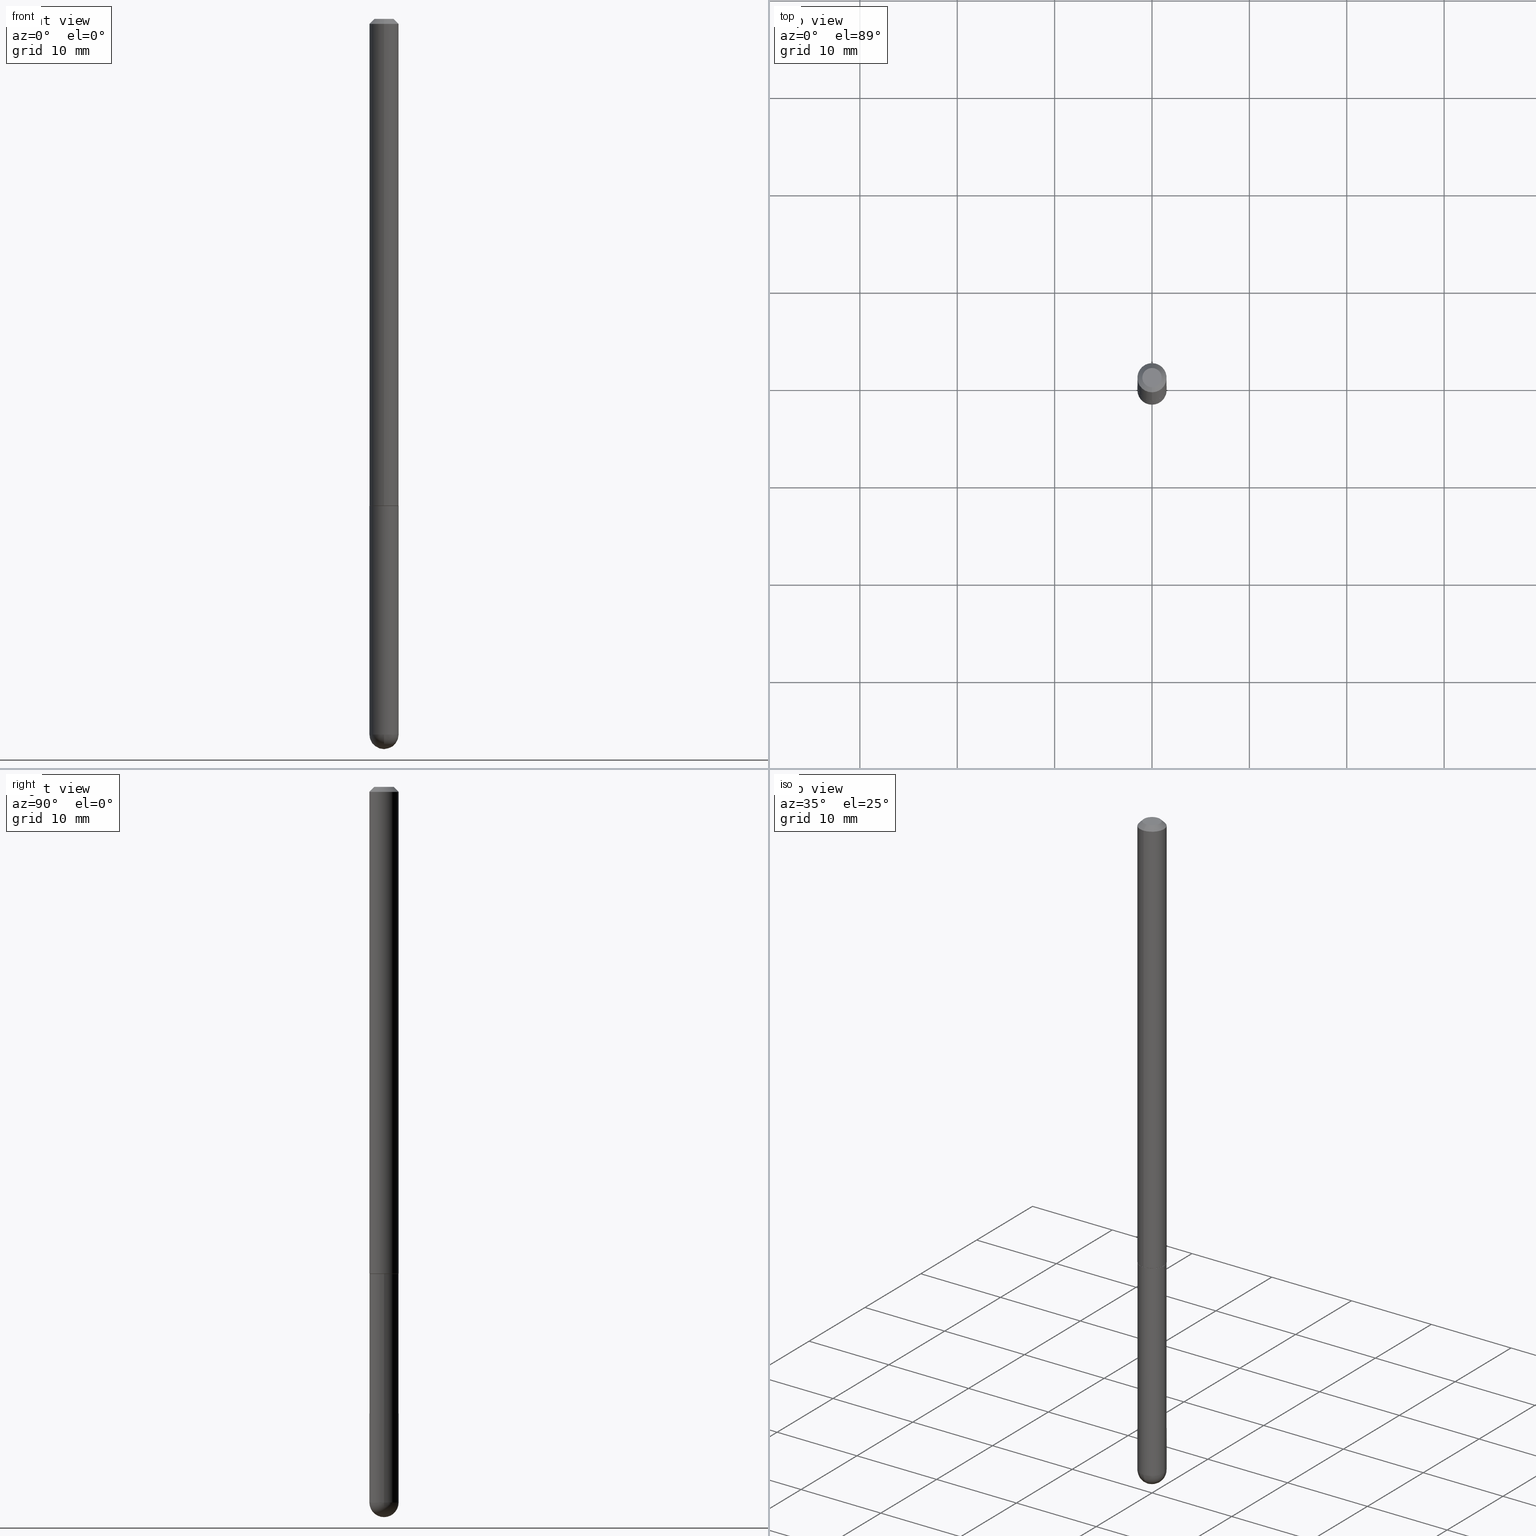
[diagram: canonical four-view strip — front | top / right | iso, engineering-drawing reading convention]
A machine part, canonical four-view strip (front | top / right | iso — engineering-drawing reading convention). The complete STEP part file that produces these views, byte-faithful:
ISO-10303-21;
HEADER;
FILE_DESCRIPTION (( 'STEP AP203' ),
    '1' );
FILE_NAME ('49544.STEP',
    '2024-04-10T12:19:42',
    ( '' ),
    ( '' ),
    'SwSTEP 2.0',
    'SolidWorks 2023',
    '' );
FILE_SCHEMA (( 'CONFIG_CONTROL_DESIGN' ));
ENDSEC;

DATA;
#1 = DIRECTION ( 'NONE',  ( -6.982962677686265922E-15, -1.000000000000000000, 3.481260124123204048E-15 ) ) ;
#2 = CARTESIAN_POINT ( 'NONE',  ( -2.398076192876836940E-45, 3.403859486683713980E-31, 9.777664883749578764E-17 ) ) ;
#3 = CARTESIAN_POINT ( 'NONE',  ( -2.398076192876836940E-45, 3.403859486683713980E-31, 9.777664883749578764E-17 ) ) ;
#4 = EDGE_CURVE ( 'NONE', #153, #277, #393, .T. ) ;
#5 = CARTESIAN_POINT ( 'NONE',  ( 4.123439461174440441E-16, 0.05904999999998979815, -2.893749999999999822 ) ) ;
#6 = CARTESIAN_POINT ( 'NONE',  ( 4.827955387920569283E-29, -6.852860554336525173E-15, -1.968499999999999694 ) ) ;
#7 = MANIFOLD_SOLID_BREP ( 'Body-Move/Copy2[2]', #260 ) ;
#8 = DIRECTION ( 'NONE',  ( 1.000000000000000000, -6.982962677686266711E-15, 4.876176775795935793E-29 ) ) ;
#9 = ORIENTED_EDGE ( 'NONE', *, *, #59, .T. ) ;
#10 = CONICAL_SURFACE ( 'NONE', #101, 0.05905000000000001914, 0.7853981633974473908 ) ;
#11 = MANIFOLD_SOLID_BREP ( 'Body-Move/Copy2[1]', #129 ) ;
#12 = CIRCLE ( 'NONE', #21, 0.05905000000000001914 ) ;
#13 = DIRECTION ( 'NONE',  ( 1.000000000000000000, -6.982962677686266711E-15, 4.876176775795935793E-29 ) ) ;
#14 = PERSON_AND_ORGANIZATION ( #396, #108 ) ;
#15 = DIRECTION ( 'NONE',  ( -2.452606242276133797E-29, 3.481260124123203654E-15, 1.000000000000000000 ) ) ;
#16 = VERTEX_POINT ( 'NONE', #122 ) ;
#17 = CC_DESIGN_PERSON_AND_ORGANIZATION_ASSIGNMENT ( #26, #251, ( #238 ) ) ;
#18 = APPROVAL_STATUS ( 'not_yet_approved' ) ;
#19 = ADVANCED_FACE ( 'NONE', ( #253 ), #377, .T. ) ;
#20 = CIRCLE ( 'NONE', #410, 0.05905000000000001914 ) ;
#21 = AXIS2_PLACEMENT_3D ( 'NONE', #105, #328, #75 ) ;
#22 = CARTESIAN_POINT ( 'NONE',  ( 4.905212484552284025E-31, -6.962520248246431022E-17, -0.02000000000000006981 ) ) ;
#23 = VERTEX_POINT ( 'NONE', #409 ) ;
#24 = VERTEX_POINT ( 'NONE', #286 ) ;
#25 = DIRECTION ( 'NONE',  ( -2.452606242276133797E-29, 3.481260124123203654E-15, 1.000000000000000000 ) ) ;
#26 = PERSON_AND_ORGANIZATION ( #396, #108 ) ;
#27 = ORIENTED_EDGE ( 'NONE', *, *, #243, .F. ) ;
#28 = DIRECTION ( 'NONE',  ( 1.000000000000000000, -6.982962677686270655E-15, 0.000000000000000000 ) ) ;
#29 = AXIS2_PLACEMENT_3D ( 'NONE', #47, #173, #174 ) ;
#30 = PERSON_AND_ORGANIZATION_ROLE ( 'classification_officer' ) ;
#31 = EDGE_LOOP ( 'NONE', ( #33, #91 ) ) ;
#32 = CARTESIAN_POINT ( 'NONE',  ( 6.745455579984352556E-29, -1.057765649241740097E-14, -2.893749999999999822 ) ) ;
#33 = ORIENTED_EDGE ( 'NONE', *, *, #229, .T. ) ;
#34 = DIRECTION ( 'NONE',  ( -2.452606242276134078E-29, 3.481260124123204048E-15, 1.000000000000000000 ) ) ;
#35 = CARTESIAN_POINT ( 'NONE',  ( 2.726846925636479293E-16, 0.03904999999999989035, -8.705488342826280892E-17 ) ) ;
#36 = AXIS2_PLACEMENT_3D ( 'NONE', #90, #25, #220 ) ;
#37 = AXIS2_PLACEMENT_3D ( 'NONE', #195, #164, #371 ) ;
#38 = AXIS2_PLACEMENT_3D ( 'NONE', #259, #99, #134 ) ;
#39 = APPLICATION_CONTEXT ( 'configuration controlled 3d designs of mechanical parts and assemblies' ) ;
#40 =( CONVERSION_BASED_UNIT ( 'INCH', #322 ) LENGTH_UNIT ( ) NAMED_UNIT ( #144 ) );
#41 = ORIENTED_EDGE ( 'NONE', *, *, #318, .T. ) ;
#42 = ORIENTED_EDGE ( 'NONE', *, *, #318, .F. ) ;
#43 = CARTESIAN_POINT ( 'NONE',  ( -0.05905000000000001914, -8.068652084428701697E-15, -1.968499999999999694 ) ) ;
#44 = ORIENTED_EDGE ( 'NONE', *, *, #386, .F. ) ;
#45 = DIRECTION ( 'NONE',  ( 6.982962677686265922E-15, 1.000000000000000000, 0.000000000000000000 ) ) ;
#46 = CONICAL_SURFACE ( 'NONE', #299, 0.05905000000000001914, 0.7853981633974473908 ) ;
#47 = CARTESIAN_POINT ( 'NONE',  ( 7.076575357898237682E-29, -1.010347412427735067E-14, -2.893749999999999822 ) ) ;
#48 = EDGE_CURVE ( 'NONE', #277, #331, #20, .T. ) ;
#49 = DIRECTION ( 'NONE',  ( -2.445468806185136597E-29, 3.491481338843145583E-15, 1.000000000000000000 ) ) ;
#50 = ORIENTED_EDGE ( 'NONE', *, *, #341, .T. ) ;
#51 = FACE_OUTER_BOUND ( 'NONE', #265, .T. ) ;
#52 = ORIENTED_EDGE ( 'NONE', *, *, #288, .F. ) ;
#53 = CONICAL_SURFACE ( 'NONE', #344, 0.05804999999999999744, 0.7853981633975165577 ) ;
#54 = CIRCLE ( 'NONE', #306, 0.05905000000000001914 ) ;
#55 = CARTESIAN_POINT ( 'NONE',  ( 4.905212484552284025E-31, -6.962520248246431022E-17, -0.02000000000000006981 ) ) ;
#56 = VERTEX_POINT ( 'NONE', #125 ) ;
#57 = DIRECTION ( 'NONE',  ( -2.445468806185136597E-29, 3.491481338843145583E-15, 1.000000000000000000 ) ) ;
#58 = DATE_AND_TIME ( #123, #345 ) ;
#59 = EDGE_CURVE ( 'NONE', #16, #81, #375, .T. ) ;
#60 = ORIENTED_EDGE ( 'NONE', *, *, #155, .F. ) ;
#61 = CARTESIAN_POINT ( 'NONE',  ( -4.053609834396394049E-16, -0.05805000000000685306, -1.968499999999999472 ) ) ;
#62 = CIRCLE ( 'NONE', #37, 0.05905000000000025506 ) ;
#63 = DIRECTION ( 'NONE',  ( 6.982962677686265922E-15, 1.000000000000000000, 0.000000000000000000 ) ) ;
#64 = CC_DESIGN_APPROVAL ( #98, ( #103 ) ) ;
#65 = DIRECTION ( 'NONE',  ( -2.452606242276133797E-29, 3.481260124123203654E-15, 1.000000000000000000 ) ) ;
#66 = ORIENTED_EDGE ( 'NONE', *, *, #367, .T. ) ;
#67 = CARTESIAN_POINT ( 'NONE',  ( 0.05905000000000001914, -8.900571516012416899E-15, -2.893749999999999822 ) ) ;
#68 = PRODUCT_DEFINITION_SHAPE ( 'NONE', 'NONE',  #103 ) ;
#69 = CARTESIAN_POINT ( 'NONE',  ( -3.365074267906929945E-16, -0.03904999999999989035, 2.337198566845065150E-16 ) ) ;
#70 = CIRCLE ( 'NONE', #363, 0.05905000000000020649 ) ;
#71 = ORIENTED_EDGE ( 'NONE', *, *, #290, .T. ) ;
#72 = ORIENTED_EDGE ( 'NONE', *, *, #95, .T. ) ;
#73 = SPHERICAL_SURFACE ( 'NONE', #357, 0.05905000000000025506 ) ;
#74 = FACE_OUTER_BOUND ( 'NONE', #362, .T. ) ;
#75 = DIRECTION ( 'NONE',  ( 1.000000000000000000, -6.982962677686270655E-15, 0.000000000000000000 ) ) ;
#76 = AXIS2_PLACEMENT_3D ( 'NONE', #2, #135, #325 ) ;
#77 = CALENDAR_DATE ( 2024, 10, 4 ) ;
#78 = APPLICATION_PROTOCOL_DEFINITION ( 'international standard', 'config_control_design', 1994, #39 ) ;
#79 = DIRECTION ( 'NONE',  ( -2.445468806185136877E-29, 3.491481338843145188E-15, 1.000000000000000000 ) ) ;
#80 = ORIENTED_EDGE ( 'NONE', *, *, #136, .T. ) ;
#81 = VERTEX_POINT ( 'NONE', #368 ) ;
#82 = DATE_TIME_ROLE ( 'creation_date' ) ;
#83 = AXIS2_PLACEMENT_3D ( 'NONE', #127, #177, #109 ) ;
#84 = PERSON_AND_ORGANIZATION ( #396, #108 ) ;
#85 = DIRECTION ( 'NONE',  ( -6.982962677686265922E-15, -1.000000000000000000, 3.469747663417776213E-15 ) ) ;
#86 = CARTESIAN_POINT ( 'NONE',  ( 4.827955387920569283E-29, -6.852860554336525173E-15, -1.968499999999999694 ) ) ;
#87 = EDGE_LOOP ( 'NONE', ( #163, #315, #158, #124, #215 ) ) ;
#88 = LOCAL_TIME ( 8, 19, 42.00000000000000000, #150 ) ;
#89 = APPROVAL_PERSON_ORGANIZATION ( #84, #246, #154 ) ;
#90 = CARTESIAN_POINT ( 'NONE',  ( 4.827955387920569283E-29, -6.852860554336525173E-15, -1.968499999999999694 ) ) ;
#91 = ORIENTED_EDGE ( 'NONE', *, *, #288, .T. ) ;
#92 = FACE_OUTER_BOUND ( 'NONE', #146, .T. ) ;
#93 = CARTESIAN_POINT ( 'NONE',  ( 4.123439461173745750E-16, 0.05904999999999994975, -0.02000000000000027450 ) ) ;
#94 = UNCERTAINTY_MEASURE_WITH_UNIT (LENGTH_MEASURE( 1.000000000000000082E-05 ), #40, 'distance_accuracy_value', 'NONE');
#95 = EDGE_CURVE ( 'NONE', #24, #56, #166, .T. ) ;
#96 = SPHERICAL_SURFACE ( 'NONE', #327, 0.05905000000000025506 ) ;
#97 = CARTESIAN_POINT ( 'NONE',  ( 4.825502781678292621E-29, -6.849379294212400691E-15, -1.967499999999999805 ) ) ;
#98 = APPROVAL ( #302, 'UNSPECIFIED' ) ;
#99 = DIRECTION ( 'NONE',  ( -2.452606242276133797E-29, 3.481260124123203654E-15, 1.000000000000000000 ) ) ;
#100 = LINE ( 'NONE', #385, #314 ) ;
#101 = AXIS2_PLACEMENT_3D ( 'NONE', #405, #337, #225 ) ;
#102 = VECTOR ( 'NONE', #252, 39.37007874015748143 ) ;
#103 = PRODUCT_DEFINITION ( 'UNKNOWN', '', #238, #242 ) ;
#104 = CARTESIAN_POINT ( 'NONE',  ( 7.076575357898237682E-29, -1.010347412427735067E-14, -2.893749999999999822 ) ) ;
#105 = CARTESIAN_POINT ( 'NONE',  ( 4.813905344975440714E-29, -6.872981015512730918E-15, -1.968499999999999694 ) ) ;
#106 = PERSON_AND_ORGANIZATION ( #396, #108 ) ;
#107 = ORIENTED_EDGE ( 'NONE', *, *, #243, .T. ) ;
#108 = ORGANIZATION ( 'UNSPECIFIED', 'UNSPECIFIED', '' ) ;
#109 = DIRECTION ( 'NONE',  ( 1.000000000000000000, 0.000000000000000000, 0.000000000000000000 ) ) ;
#110 = ORIENTED_EDGE ( 'NONE', *, *, #221, .F. ) ;
#111 = EDGE_LOOP ( 'NONE', ( #184, #358, #27, #389 ) ) ;
#112 = ADVANCED_FACE ( 'NONE', ( #254 ), #96, .T. ) ;
#113 = PERSON_AND_ORGANIZATION ( #396, #108 ) ;
#114 = SECURITY_CLASSIFICATION ( '', '', #400 ) ;
#115 = ORIENTED_EDGE ( 'NONE', *, *, #128, .T. ) ;
#116 = APPROVAL_STATUS ( 'not_yet_approved' ) ;
#117 = COORDINATED_UNIVERSAL_TIME_OFFSET ( 5, 0, .BEHIND. ) ;
#118 = DIRECTION ( 'NONE',  ( 6.982962677686265922E-15, 1.000000000000000000, -3.469747663417776213E-15 ) ) ;
#119 = EDGE_CURVE ( 'NONE', #305, #222, #320, .T. ) ;
#120 = CIRCLE ( 'NONE', #76, 0.03904999999999989035 ) ;
#121 = ORIENTED_EDGE ( 'NONE', *, *, #274, .T. ) ;
#122 = CARTESIAN_POINT ( 'NONE',  ( -4.123439461173271448E-16, -0.05905000000000704824, -1.967499999999999361 ) ) ;
#123 = CALENDAR_DATE ( 2024, 10, 4 ) ;
#124 = ORIENTED_EDGE ( 'NONE', *, *, #372, .T. ) ;
#125 = CARTESIAN_POINT ( 'NONE',  ( 4.123439461173745750E-16, 0.05904999999999994975, -0.02000000000000027450 ) ) ;
#126 = DIRECTION ( 'NONE',  ( -6.982962677686265922E-15, -1.000000000000000000, 3.481260124123203654E-15 ) ) ;
#127 = CARTESIAN_POINT ( 'NONE',  ( 0.000000000000000000, 0.000000000000000000, 0.000000000000000000 ) ) ;
#128 = EDGE_CURVE ( 'NONE', #23, #189, #255, .T. ) ;
#129 = CLOSED_SHELL ( 'NONE', ( #380, #235, #112, #353, #360 ) ) ;
#130 = EDGE_LOOP ( 'NONE', ( #138, #399, #72, #391 ) ) ;
#131 = DIRECTION ( 'NONE',  ( 4.937700262164543309E-15, 0.7071067811865444641, -0.7071067811865506814 ) ) ;
#132 = VECTOR ( 'NONE', #292, 39.37007874015748143 ) ;
#133 = PRODUCT ( '49544', '49544', '', ( #186 ) ) ;
#134 = DIRECTION ( 'NONE',  ( -6.982962677686265922E-15, -1.000000000000000000, 3.481260124123203654E-15 ) ) ;
#135 = DIRECTION ( 'NONE',  ( -2.452606242276133797E-29, 3.481260124123203654E-15, 1.000000000000000000 ) ) ;
#136 = EDGE_CURVE ( 'NONE', #305, #359, #62, .T. ) ;
#137 = ORIENTED_EDGE ( 'NONE', *, *, #274, .F. ) ;
#138 = ORIENTED_EDGE ( 'NONE', *, *, #309, .F. ) ;
#139 = DIRECTION ( 'NONE',  ( 1.000000000000000000, -6.982962677686270655E-15, 0.000000000000000000 ) ) ;
#140 = AXIS2_PLACEMENT_3D ( 'NONE', #55, #308, #279 ) ;
#141 = CIRCLE ( 'NONE', #188, 0.05905000000000001914 ) ;
#142 = LINE ( 'NONE', #378, #287 ) ;
#143 = DATE_AND_TIME ( #77, #198 ) ;
#144 = DIMENSIONAL_EXPONENTS ( 1.000000000000000000, 0.000000000000000000, 0.000000000000000000, 0.000000000000000000, 0.000000000000000000, 0.000000000000000000, 0.000000000000000000 ) ;
#145 = DIRECTION ( 'NONE',  ( -2.452606242276133797E-29, 3.481260124123203654E-15, 1.000000000000000000 ) ) ;
#146 = EDGE_LOOP ( 'NONE', ( #52, #376, #300, #241 ) ) ;
#147 = AXIS2_PLACEMENT_3D ( 'NONE', #303, #152, #13 ) ;
#148 = CARTESIAN_POINT ( 'NONE',  ( 4.827955387920569283E-29, -6.852860554336525173E-15, -1.968499999999999694 ) ) ;
#149 = ADVANCED_FACE ( 'NONE', ( #401 ), #53, .T. ) ;
#150 = COORDINATED_UNIVERSAL_TIME_OFFSET ( 5, 0, .BEHIND. ) ;
#151 = PERSON_AND_ORGANIZATION_ROLE ( 'creator' ) ;
#152 = DIRECTION ( 'NONE',  ( -2.445468806185136597E-29, 3.491481338843145583E-15, 1.000000000000000000 ) ) ;
#153 = VERTEX_POINT ( 'NONE', #335 ) ;
#154 = APPROVAL_ROLE ( '' ) ;
#155 = EDGE_CURVE ( 'NONE', #81, #56, #168, .T. ) ;
#156 = EDGE_LOOP ( 'NONE', ( #42, #115, #121, #298 ) ) ;
#157 = DIRECTION ( 'NONE',  ( -2.452606242276133797E-29, 3.481260124123203654E-15, 1.000000000000000000 ) ) ;
#158 = ORIENTED_EDGE ( 'NONE', *, *, #304, .T. ) ;
#159 = ORIENTED_EDGE ( 'NONE', *, *, #48, .T. ) ;
#160 = DIRECTION ( 'NONE',  ( 1.000000000000000000, -6.982962677686270655E-15, 0.000000000000000000 ) ) ;
#161 = PERSON_AND_ORGANIZATION ( #396, #108 ) ;
#162 = AXIS2_PLACEMENT_3D ( 'NONE', #35, #263, #171 ) ;
#163 = ORIENTED_EDGE ( 'NONE', *, *, #4, .F. ) ;
#164 = DIRECTION ( 'NONE',  ( -1.000000000000000000, 7.105427357601001070E-15, -4.926315508542082329E-29 ) ) ;
#165 = ORIENTED_EDGE ( 'NONE', *, *, #367, .F. ) ;
#166 = LINE ( 'NONE', #93, #187 ) ;
#167 = APPLICATION_PROTOCOL_DEFINITION ( 'international standard', 'config_control_design', 1994, #185 ) ;
#168 = CIRCLE ( 'NONE', #140, 0.05905000000000001914 ) ;
#169 = DIRECTION ( 'NONE',  ( -2.452606242276133237E-29, 3.481260124123204048E-15, 1.000000000000000000 ) ) ;
#170 = LOCAL_TIME ( 8, 19, 42.00000000000000000, #275 ) ;
#171 = DIRECTION ( 'NONE',  ( 6.982962677686265922E-15, 1.000000000000000000, -3.481260124123204048E-15 ) ) ;
#172 = EDGE_LOOP ( 'NONE', ( #66, #41, #291, #137 ) ) ;
#173 = DIRECTION ( 'NONE',  ( -2.445468806185136597E-29, 3.491481338843145583E-15, 1.000000000000000000 ) ) ;
#174 = DIRECTION ( 'NONE',  ( 1.000000000000000000, -6.982962677686270655E-15, 0.000000000000000000 ) ) ;
#175 = CONICAL_SURFACE ( 'NONE', #36, 0.05804999999999999744, 0.7853981633975165577 ) ;
#176 = CIRCLE ( 'NONE', #182, 0.03904999999999989035 ) ;
#177 = DIRECTION ( 'NONE',  ( 0.000000000000000000, 0.000000000000000000, 1.000000000000000000 ) ) ;
#178 = PLANE ( 'NONE',  #395 ) ;
#179 = CC_DESIGN_PERSON_AND_ORGANIZATION_ASSIGNMENT ( #106, #207, ( #133 ) ) ;
#180 = APPROVAL_ROLE ( '' ) ;
#181 = PRODUCT_RELATED_PRODUCT_CATEGORY ( 'detail', '', ( #133 ) ) ;
#182 = AXIS2_PLACEMENT_3D ( 'NONE', #3, #289, #323 ) ;
#183 = ADVANCED_FACE ( 'NONE', ( #92 ), #46, .T. ) ;
#184 = ORIENTED_EDGE ( 'NONE', *, *, #136, .F. ) ;
#185 = APPLICATION_CONTEXT ( 'configuration controlled 3d designs of mechanical parts and assemblies' ) ;
#186 = MECHANICAL_CONTEXT ( 'NONE', #185, 'mechanical' ) ;
#187 = VECTOR ( 'NONE', #131, 39.37007874015748143 ) ;
#188 = AXIS2_PLACEMENT_3D ( 'NONE', #104, #319, #139 ) ;
#189 = VERTEX_POINT ( 'NONE', #61 ) ;
#190 = EDGE_LOOP ( 'NONE', ( #50, #278, #60, #330 ) ) ;
#191 = CARTESIAN_POINT ( 'NONE',  ( 0.000000000000000000, 0.000000000000000000, 0.000000000000000000 ) ) ;
#192 = COORDINATED_UNIVERSAL_TIME_OFFSET ( 5, 0, .BEHIND. ) ;
#193 = AXIS2_PLACEMENT_3D ( 'NONE', #334, #49, #8 ) ;
#194 = CARTESIAN_POINT ( 'NONE',  ( 4.827955387920569283E-29, -6.852860554336525173E-15, -1.968499999999999694 ) ) ;
#195 = CARTESIAN_POINT ( 'NONE',  ( 6.745455579984352556E-29, -1.057765649241740097E-14, -2.893749999999999822 ) ) ;
#196 = CYLINDRICAL_SURFACE ( 'NONE', #38, 0.05905000000000010935 ) ;
#197 = CIRCLE ( 'NONE', #247, 0.05905000000000001914 ) ;
#198 = LOCAL_TIME ( 8, 19, 42.00000000000000000, #271 ) ;
#199 = PLANE ( 'NONE',  #321 ) ;
#200 = FACE_OUTER_BOUND ( 'NONE', #31, .T. ) ;
#201 = ADVANCED_FACE ( 'NONE', ( #245 ), #175, .T. ) ;
#202 = CARTESIAN_POINT ( 'NONE',  ( -4.053609834396394049E-16, -0.05805000000000685306, -1.968499999999999472 ) ) ;
#203 = CALENDAR_DATE ( 2024, 10, 4 ) ;
#204 = DIRECTION ( 'NONE',  ( -2.452606242276133797E-29, 3.481260124123203654E-15, 1.000000000000000000 ) ) ;
#205 = ADVANCED_FACE ( 'NONE', ( #316 ), #10, .T. ) ;
#206 = DIRECTION ( 'NONE',  ( -6.982962677686265922E-15, -1.000000000000000000, 4.706025828879006993E-15 ) ) ;
#207 = PERSON_AND_ORGANIZATION_ROLE ( 'design_owner' ) ;
#208 = DIRECTION ( 'NONE',  ( -1.000000000000000000, 6.982962677686265922E-15, -4.876176775795935793E-29 ) ) ;
#209 = PERSON_AND_ORGANIZATION ( #396, #108 ) ;
#210 = DIRECTION ( 'NONE',  ( 2.438088387897960049E-29, -3.491481338843145188E-15, -1.000000000000000000 ) ) ;
#211 = CIRCLE ( 'NONE', #382, 0.05905000000000001914 ) ;
#212 = APPROVAL_ROLE ( '' ) ;
#213 = CC_DESIGN_PERSON_AND_ORGANIZATION_ASSIGNMENT ( #366, #30, ( #114 ) ) ;
#214 = LINE ( 'NONE', #404, #102 ) ;
#215 = ORIENTED_EDGE ( 'NONE', *, *, #48, .F. ) ;
#216 = DIRECTION ( 'NONE',  ( -6.982962677686265922E-15, -1.000000000000000000, 4.706025828879006993E-15 ) ) ;
#217 = AXIS2_PLACEMENT_3D ( 'NONE', #369, #346, #249 ) ;
#218 = CALENDAR_DATE ( 2024, 10, 4 ) ;
#219 =( GEOMETRIC_REPRESENTATION_CONTEXT ( 3 ) GLOBAL_UNCERTAINTY_ASSIGNED_CONTEXT ( ( #94 ) ) GLOBAL_UNIT_ASSIGNED_CONTEXT ( ( #40, #408, #285 ) ) REPRESENTATION_CONTEXT ( 'NONE', 'WORKASPACE' ) );
#220 = DIRECTION ( 'NONE',  ( -6.982962677686265922E-15, -1.000000000000000000, 4.706025828879006993E-15 ) ) ;
#221 = EDGE_CURVE ( 'NONE', #153, #359, #197, .T. ) ;
#222 = VERTEX_POINT ( 'NONE', #5 ) ;
#223 = DIRECTION ( 'NONE',  ( 2.452606242276133797E-29, -3.481260124123203654E-15, -1.000000000000000000 ) ) ;
#224 = DATE_AND_TIME ( #218, #280 ) ;
#225 = DIRECTION ( 'NONE',  ( 6.982962677686265922E-15, 1.000000000000000000, -3.469747663417776213E-15 ) ) ;
#226 = DIRECTION ( 'NONE',  ( -1.000000000000000000, 6.982962677686265922E-15, -4.883557194083112340E-29 ) ) ;
#227 = ADVANCED_BREP_SHAPE_REPRESENTATION ( '49544', ( #11, #7, #83 ), #219 ) ;
#228 = DIRECTION ( 'NONE',  ( -6.982962677686265922E-15, -1.000000000000000000, 4.626330217890353559E-15 ) ) ;
#229 = EDGE_CURVE ( 'NONE', #24, #283, #176, .T. ) ;
#230 = DIRECTION ( 'NONE',  ( -6.982962677686265922E-15, -1.000000000000000000, 4.626330217890353559E-15 ) ) ;
#231 = CARTESIAN_POINT ( 'NONE',  ( 4.195754854663646379E-16, 0.05904999999999335780, -1.967500000000000027 ) ) ;
#232 = EDGE_CURVE ( 'NONE', #262, #16, #70, .T. ) ;
#233 = PLANE ( 'NONE',  #162 ) ;
#234 = DIRECTION ( 'NONE',  ( 5.024295867788404755E-15, 0.7071067811865981989, 0.7071067811864968355 ) ) ;
#235 = ADVANCED_FACE ( 'NONE', ( #74 ), #73, .T. ) ;
#236 = CYLINDRICAL_SURFACE ( 'NONE', #147, 0.05905000000000001914 ) ;
#237 = AXIS2_PLACEMENT_3D ( 'NONE', #86, #65, #311 ) ;
#238 = PRODUCT_DEFINITION_FORMATION_WITH_SPECIFIED_SOURCE ( 'ANY', '', #133, .NOT_KNOWN. ) ;
#239 = ORIENTED_EDGE ( 'NONE', *, *, #412, .F. ) ;
#240 = FACE_OUTER_BOUND ( 'NONE', #87, .T. ) ;
#241 = ORIENTED_EDGE ( 'NONE', *, *, #95, .F. ) ;
#242 = DESIGN_CONTEXT ( 'detailed design', #39, 'design' ) ;
#243 = EDGE_CURVE ( 'NONE', #269, #222, #141, .T. ) ;
#244 = ORIENTED_EDGE ( 'NONE', *, *, #372, .F. ) ;
#245 = FACE_OUTER_BOUND ( 'NONE', #156, .T. ) ;
#246 = APPROVAL ( #116, 'UNSPECIFIED' ) ;
#247 = AXIS2_PLACEMENT_3D ( 'NONE', #343, #57, #160 ) ;
#248 = CIRCLE ( 'NONE', #256, 0.05804999999999999744 ) ;
#249 = DIRECTION ( 'NONE',  ( 6.982962677686266711E-15, 1.000000000000000000, 0.000000000000000000 ) ) ;
#250 = ADVANCED_FACE ( 'NONE', ( #200 ), #233, .F. ) ;
#251 = PERSON_AND_ORGANIZATION_ROLE ( 'creator' ) ;
#252 = DIRECTION ( 'NONE',  ( -2.452606242276134078E-29, 3.481260124123204048E-15, 1.000000000000000000 ) ) ;
#253 = FACE_OUTER_BOUND ( 'NONE', #190, .T. ) ;
#254 = FACE_OUTER_BOUND ( 'NONE', #111, .T. ) ;
#255 = CIRCLE ( 'NONE', #237, 0.05804999999999999744 ) ;
#256 = AXIS2_PLACEMENT_3D ( 'NONE', #148, #145, #206 ) ;
#257 = CARTESIAN_POINT ( 'NONE',  ( 0.05905000000000001914, -7.285324961630105839E-15, -1.968499999999999694 ) ) ;
#258 = DIRECTION ( 'NONE',  ( -2.445468806185136597E-29, 3.491481338843145583E-15, 1.000000000000000000 ) ) ;
#259 = CARTESIAN_POINT ( 'NONE',  ( 0.000000000000000000, 0.000000000000000000, 0.000000000000000000 ) ) ;
#260 = CLOSED_SHELL ( 'NONE', ( #149, #19, #183, #205, #276, #201, #324, #250 ) ) ;
#261 = CIRCLE ( 'NONE', #411, 0.05905000000000020649 ) ;
#262 = VERTEX_POINT ( 'NONE', #231 ) ;
#263 = DIRECTION ( 'NONE',  ( 2.452606242276133237E-29, -3.481260124123204048E-15, -1.000000000000000000 ) ) ;
#264 = FACE_OUTER_BOUND ( 'NONE', #295, .T. ) ;
#265 = EDGE_LOOP ( 'NONE', ( #71, #387, #267, #244, #107 ) ) ;
#266 = CARTESIAN_POINT ( 'NONE',  ( 4.123439461174222518E-16, 0.05904999999999314270, -1.968500000000000139 ) ) ;
#267 = ORIENTED_EDGE ( 'NONE', *, *, #268, .F. ) ;
#268 = EDGE_CURVE ( 'NONE', #331, #277, #12, .T. ) ;
#269 = VERTEX_POINT ( 'NONE', #67 ) ;
#270 = CIRCLE ( 'NONE', #29, 0.05905000000000001914 ) ;
#271 = COORDINATED_UNIVERSAL_TIME_OFFSET ( 5, 0, .BEHIND. ) ;
#272 = CARTESIAN_POINT ( 'NONE',  ( 0.05905000000000001914, -4.123439461173741806E-16, 2.879382386107500921E-30 ) ) ;
#273 = ORIENTED_EDGE ( 'NONE', *, *, #119, .F. ) ;
#274 = EDGE_CURVE ( 'NONE', #189, #16, #352, .T. ) ;
#275 = COORDINATED_UNIVERSAL_TIME_OFFSET ( 5, 0, .BEHIND. ) ;
#276 = ADVANCED_FACE ( 'NONE', ( #264 ), #196, .T. ) ;
#277 = VERTEX_POINT ( 'NONE', #43 ) ;
#278 = ORIENTED_EDGE ( 'NONE', *, *, #412, .T. ) ;
#279 = DIRECTION ( 'NONE',  ( -6.982962677686265922E-15, -1.000000000000000000, 3.469747663417776213E-15 ) ) ;
#280 = LOCAL_TIME ( 8, 19, 42.00000000000000000, #117 ) ;
#281 = DATE_TIME_ROLE ( 'classification_date' ) ;
#282 = DIRECTION ( 'NONE',  ( -2.452606242276133797E-29, 3.481260124123203654E-15, 1.000000000000000000 ) ) ;
#283 = VERTEX_POINT ( 'NONE', #69 ) ;
#284 = DIRECTION ( 'NONE',  ( -2.445468806185136877E-29, 3.491481338843145188E-15, 1.000000000000000000 ) ) ;
#285 =( NAMED_UNIT ( * ) SI_UNIT ( $, .STERADIAN. ) SOLID_ANGLE_UNIT ( ) );
#286 = CARTESIAN_POINT ( 'NONE',  ( 3.425143193405112768E-16, 0.03904999999999989035, -3.816655900951493358E-17 ) ) ;
#287 = VECTOR ( 'NONE', #234, 39.37007874015748143 ) ;
#288 = EDGE_CURVE ( 'NONE', #283, #24, #120, .T. ) ;
#289 = DIRECTION ( 'NONE',  ( -2.452606242276133797E-29, 3.481260124123203654E-15, 1.000000000000000000 ) ) ;
#290 = EDGE_CURVE ( 'NONE', #222, #153, #211, .T. ) ;
#291 = ORIENTED_EDGE ( 'NONE', *, *, #341, .F. ) ;
#292 = DIRECTION ( 'NONE',  ( -4.937700262164884886E-15, -0.7071067811865933139, 0.7071067811865017205 ) ) ;
#293 = CARTESIAN_POINT ( 'NONE',  ( 6.892385391458386628E-29, -1.078021269580160693E-14, -2.952799999999999869 ) ) ;
#294 = CC_DESIGN_APPROVAL ( #307, ( #238 ) ) ;
#295 = EDGE_LOOP ( 'NONE', ( #239, #374, #9, #44 ) ) ;
#296 = DIRECTION ( 'NONE',  ( -4.851104656540959542E-15, -0.7071067811865493491, -0.7071067811865457964 ) ) ;
#297 = CARTESIAN_POINT ( 'NONE',  ( 4.825502781678292621E-29, -6.849379294212400691E-15, -1.967499999999999805 ) ) ;
#298 = ORIENTED_EDGE ( 'NONE', *, *, #232, .F. ) ;
#299 = AXIS2_PLACEMENT_3D ( 'NONE', #22, #223, #118 ) ;
#300 = ORIENTED_EDGE ( 'NONE', *, *, #155, .T. ) ;
#301 = CC_DESIGN_APPROVAL ( #246, ( #114 ) ) ;
#302 = APPROVAL_STATUS ( 'not_yet_approved' ) ;
#303 = CARTESIAN_POINT ( 'NONE',  ( 0.000000000000000000, 0.000000000000000000, 0.000000000000000000 ) ) ;
#304 = EDGE_CURVE ( 'NONE', #359, #269, #270, .T. ) ;
#305 = VERTEX_POINT ( 'NONE', #293 ) ;
#306 = AXIS2_PLACEMENT_3D ( 'NONE', #365, #15, #85 ) ;
#307 = APPROVAL ( #18, 'UNSPECIFIED' ) ;
#308 = DIRECTION ( 'NONE',  ( -2.452606242276133797E-29, 3.481260124123203654E-15, 1.000000000000000000 ) ) ;
#309 = EDGE_CURVE ( 'NONE', #283, #81, #100, .T. ) ;
#310 = EDGE_LOOP ( 'NONE', ( #394, #159 ) ) ;
#311 = DIRECTION ( 'NONE',  ( -6.982962677686265922E-15, -1.000000000000000000, 4.706025828879006993E-15 ) ) ;
#312 = CARTESIAN_POINT ( 'NONE',  ( -0.05905000000000001914, 4.195754854663392958E-16, -2.904631170795522943E-30 ) ) ;
#313 = VECTOR ( 'NONE', #34, 39.37007874015748143 ) ;
#314 = VECTOR ( 'NONE', #296, 39.37007874015748143 ) ;
#315 = ORIENTED_EDGE ( 'NONE', *, *, #221, .T. ) ;
#316 = FACE_OUTER_BOUND ( 'NONE', #130, .T. ) ;
#317 = DIRECTION ( 'NONE',  ( -2.445468806185136597E-29, 3.491481338843145583E-15, 1.000000000000000000 ) ) ;
#318 = EDGE_CURVE ( 'NONE', #23, #262, #142, .T. ) ;
#319 = DIRECTION ( 'NONE',  ( -2.445468806185136597E-29, 3.491481338843145583E-15, 1.000000000000000000 ) ) ;
#320 = CIRCLE ( 'NONE', #217, 0.05905000000000025506 ) ;
#321 = AXIS2_PLACEMENT_3D ( 'NONE', #266, #210, #208 ) ;
#322 = LENGTH_MEASURE_WITH_UNIT ( LENGTH_MEASURE( 0.02539999999999999897 ), #384 );
#323 = DIRECTION ( 'NONE',  ( -6.982962677686265922E-15, -1.000000000000000000, 3.481260124123203654E-15 ) ) ;
#324 = ADVANCED_FACE ( 'NONE', ( #354 ), #178, .F. ) ;
#325 = DIRECTION ( 'NONE',  ( -6.982962677686265922E-15, -1.000000000000000000, 3.481260124123203654E-15 ) ) ;
#326 = CC_DESIGN_DATE_AND_TIME_ASSIGNMENT ( #224, #281, ( #114 ) ) ;
#327 = AXIS2_PLACEMENT_3D ( 'NONE', #32, #226, #63 ) ;
#328 = DIRECTION ( 'NONE',  ( -2.445468806185136597E-29, 3.491481338843145583E-15, 1.000000000000000000 ) ) ;
#329 = CC_DESIGN_DATE_AND_TIME_ASSIGNMENT ( #364, #82, ( #103 ) ) ;
#330 = ORIENTED_EDGE ( 'NONE', *, *, #59, .F. ) ;
#331 = VERTEX_POINT ( 'NONE', #257 ) ;
#332 = CYLINDRICAL_SURFACE ( 'NONE', #193, 0.05905000000000001914 ) ;
#333 = APPROVAL_PERSON_ORGANIZATION ( #209, #98, #180 ) ;
#334 = CARTESIAN_POINT ( 'NONE',  ( 0.000000000000000000, 0.000000000000000000, 0.000000000000000000 ) ) ;
#335 = CARTESIAN_POINT ( 'NONE',  ( -0.05905000000000001914, -8.068652084428701697E-15, -2.893749999999999822 ) ) ;
#336 = APPROVAL_PERSON_ORGANIZATION ( #113, #307, #212 ) ;
#337 = DIRECTION ( 'NONE',  ( 2.452606242276133797E-29, -3.481260124123203654E-15, -1.000000000000000000 ) ) ;
#338 = ORIENTED_EDGE ( 'NONE', *, *, #290, .F. ) ;
#339 = CARTESIAN_POINT ( 'NONE',  ( 4.813905344975440714E-29, -6.872981015512730918E-15, -1.968499999999999694 ) ) ;
#340 = PERSON_AND_ORGANIZATION_ROLE ( 'design_supplier' ) ;
#341 = EDGE_CURVE ( 'NONE', #16, #262, #261, .T. ) ;
#342 = ORIENTED_EDGE ( 'NONE', *, *, #128, .F. ) ;
#343 = CARTESIAN_POINT ( 'NONE',  ( 7.076575357898237682E-29, -1.010347412427735067E-14, -2.893749999999999822 ) ) ;
#344 = AXIS2_PLACEMENT_3D ( 'NONE', #194, #282, #216 ) ;
#345 = LOCAL_TIME ( 8, 19, 42.00000000000000000, #192 ) ;
#346 = DIRECTION ( 'NONE',  ( 1.000000000000000000, -6.982962677686265922E-15, 4.883557194083112340E-29 ) ) ;
#347 = CARTESIAN_POINT ( 'NONE',  ( 6.745455579984352556E-29, -1.057765649241740097E-14, -2.893749999999999822 ) ) ;
#348 = FACE_OUTER_BOUND ( 'NONE', #310, .T. ) ;
#349 = CC_DESIGN_SECURITY_CLASSIFICATION ( #114, ( #238 ) ) ;
#350 = DIRECTION ( 'NONE',  ( 1.000000000000000000, -6.982962677686270655E-15, 0.000000000000000000 ) ) ;
#351 = CC_DESIGN_PERSON_AND_ORGANIZATION_ASSIGNMENT ( #161, #340, ( #238 ) ) ;
#352 = LINE ( 'NONE', #202, #132 ) ;
#353 = ADVANCED_FACE ( 'NONE', ( #348 ), #199, .F. ) ;
#354 = FACE_OUTER_BOUND ( 'NONE', #406, .T. ) ;
#355 = DATE_AND_TIME ( #203, #170 ) ;
#356 = AXIS2_PLACEMENT_3D ( 'NONE', #191, #157, #126 ) ;
#357 = AXIS2_PLACEMENT_3D ( 'NONE', #347, #383, #45 ) ;
#358 = ORIENTED_EDGE ( 'NONE', *, *, #119, .T. ) ;
#359 = VERTEX_POINT ( 'NONE', #390 ) ;
#360 = ADVANCED_FACE ( 'NONE', ( #240 ), #236, .T. ) ;
#361 = LINE ( 'NONE', #272, #370 ) ;
#362 = EDGE_LOOP ( 'NONE', ( #273, #80, #110, #338 ) ) ;
#363 = AXIS2_PLACEMENT_3D ( 'NONE', #297, #204, #228 ) ;
#364 = DATE_AND_TIME ( #392, #88 ) ;
#365 = CARTESIAN_POINT ( 'NONE',  ( 4.905212484552284025E-31, -6.962520248246431022E-17, -0.02000000000000006981 ) ) ;
#366 = PERSON_AND_ORGANIZATION ( #396, #108 ) ;
#367 = EDGE_CURVE ( 'NONE', #189, #23, #248, .T. ) ;
#368 = CARTESIAN_POINT ( 'NONE',  ( -4.051124067684085231E-16, -0.05905000000000008159, -0.01999999999999986511 ) ) ;
#369 = CARTESIAN_POINT ( 'NONE',  ( 6.745455579984352556E-29, -1.057765649241740097E-14, -2.893749999999999822 ) ) ;
#370 = VECTOR ( 'NONE', #79, 39.37007874015748143 ) ;
#371 = DIRECTION ( 'NONE',  ( -7.105427357601001070E-15, -1.000000000000000000, 0.000000000000000000 ) ) ;
#372 = EDGE_CURVE ( 'NONE', #269, #331, #361, .T. ) ;
#373 = SHAPE_DEFINITION_REPRESENTATION ( #68, #227 ) ;
#374 = ORIENTED_EDGE ( 'NONE', *, *, #232, .T. ) ;
#375 = LINE ( 'NONE', #407, #313 ) ;
#376 = ORIENTED_EDGE ( 'NONE', *, *, #309, .T. ) ;
#377 = CYLINDRICAL_SURFACE ( 'NONE', #356, 0.05905000000000010935 ) ;
#378 = CARTESIAN_POINT ( 'NONE',  ( 4.124700581087863588E-16, 0.05804999999999314181, -1.968500000000000139 ) ) ;
#379 = DIRECTION ( 'NONE',  ( -2.452606242276133797E-29, 3.481260124123203654E-15, 1.000000000000000000 ) ) ;
#380 = ADVANCED_FACE ( 'NONE', ( #51 ), #332, .T. ) ;
#381 = CARTESIAN_POINT ( 'NONE',  ( 7.076575357898237682E-29, -1.010347412427735067E-14, -2.893749999999999822 ) ) ;
#382 = AXIS2_PLACEMENT_3D ( 'NONE', #381, #258, #350 ) ;
#383 = DIRECTION ( 'NONE',  ( -1.000000000000000000, 6.982962677686265922E-15, -4.883557194083112340E-29 ) ) ;
#384 =( LENGTH_UNIT ( ) NAMED_UNIT ( * ) SI_UNIT ( $, .METRE. ) );
#385 = CARTESIAN_POINT ( 'NONE',  ( -4.051124067684085231E-16, -0.05905000000000008159, -0.01999999999999986511 ) ) ;
#386 = EDGE_CURVE ( 'NONE', #56, #81, #54, .T. ) ;
#387 = ORIENTED_EDGE ( 'NONE', *, *, #4, .T. ) ;
#388 = APPROVAL_DATE_TIME ( #143, #98 ) ;
#389 = ORIENTED_EDGE ( 'NONE', *, *, #304, .F. ) ;
#390 = CARTESIAN_POINT ( 'NONE',  ( -4.195754854662709114E-16, -0.05905000000001047605, -2.893749999999999822 ) ) ;
#391 = ORIENTED_EDGE ( 'NONE', *, *, #386, .T. ) ;
#392 = CALENDAR_DATE ( 2024, 10, 4 ) ;
#393 = LINE ( 'NONE', #312, #402 ) ;
#394 = ORIENTED_EDGE ( 'NONE', *, *, #268, .T. ) ;
#395 = AXIS2_PLACEMENT_3D ( 'NONE', #6, #169, #1 ) ;
#396 = PERSON ( 'UNSPECIFIED', 'UNSPECIFIED', 'UNSPECIFIED', ('UNSPECIFIED'), ('UNSPECIFIED'), ('UNSPECIFIED') ) ;
#397 = APPROVAL_DATE_TIME ( #355, #307 ) ;
#398 = CC_DESIGN_PERSON_AND_ORGANIZATION_ASSIGNMENT ( #14, #151, ( #103 ) ) ;
#399 = ORIENTED_EDGE ( 'NONE', *, *, #229, .F. ) ;
#400 = SECURITY_CLASSIFICATION_LEVEL ( 'unclassified' ) ;
#401 = FACE_OUTER_BOUND ( 'NONE', #172, .T. ) ;
#402 = VECTOR ( 'NONE', #284, 39.37007874015748143 ) ;
#403 = APPROVAL_DATE_TIME ( #58, #246 ) ;
#404 = CARTESIAN_POINT ( 'NONE',  ( 4.195754854663398874E-16, 0.05905000000000010935, -2.055684103294755676E-16 ) ) ;
#405 = CARTESIAN_POINT ( 'NONE',  ( 4.905212484552284025E-31, -6.962520248246431022E-17, -0.02000000000000006981 ) ) ;
#406 = EDGE_LOOP ( 'NONE', ( #165, #342 ) ) ;
#407 = CARTESIAN_POINT ( 'NONE',  ( -4.123439461173747722E-16, -0.05905000000000010935, 2.055684103294755676E-16 ) ) ;
#408 =( NAMED_UNIT ( * ) PLANE_ANGLE_UNIT ( ) SI_UNIT ( $, .RADIAN. ) );
#409 = CARTESIAN_POINT ( 'NONE',  ( 4.160227717875875531E-16, 0.05804999999999314181, -1.968500000000000139 ) ) ;
#410 = AXIS2_PLACEMENT_3D ( 'NONE', #339, #317, #28 ) ;
#411 = AXIS2_PLACEMENT_3D ( 'NONE', #97, #379, #230 ) ;
#412 = EDGE_CURVE ( 'NONE', #262, #56, #214, .T. ) ;
ENDSEC;
END-ISO-10303-21;
